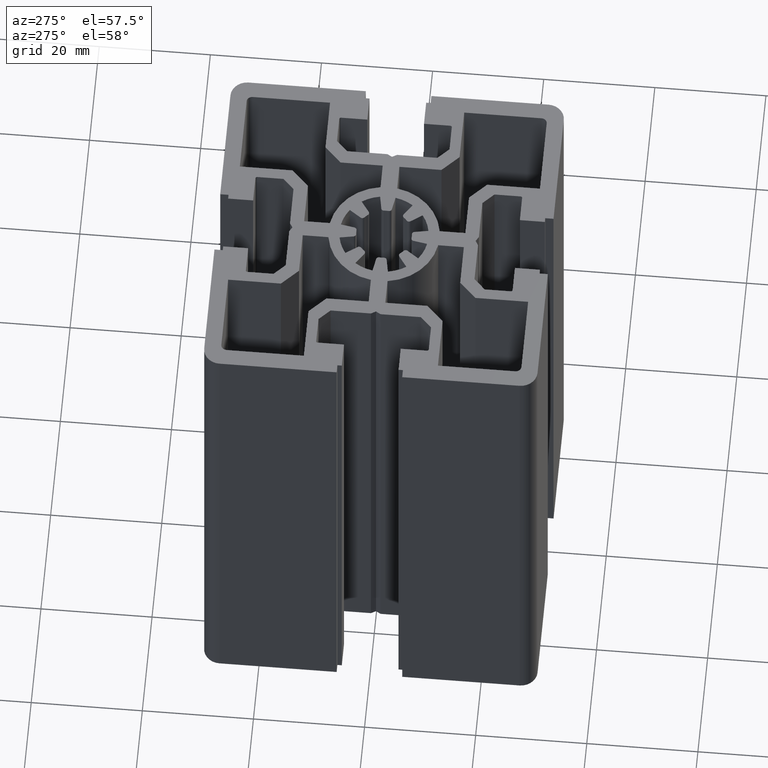
[diagram: clean part render]
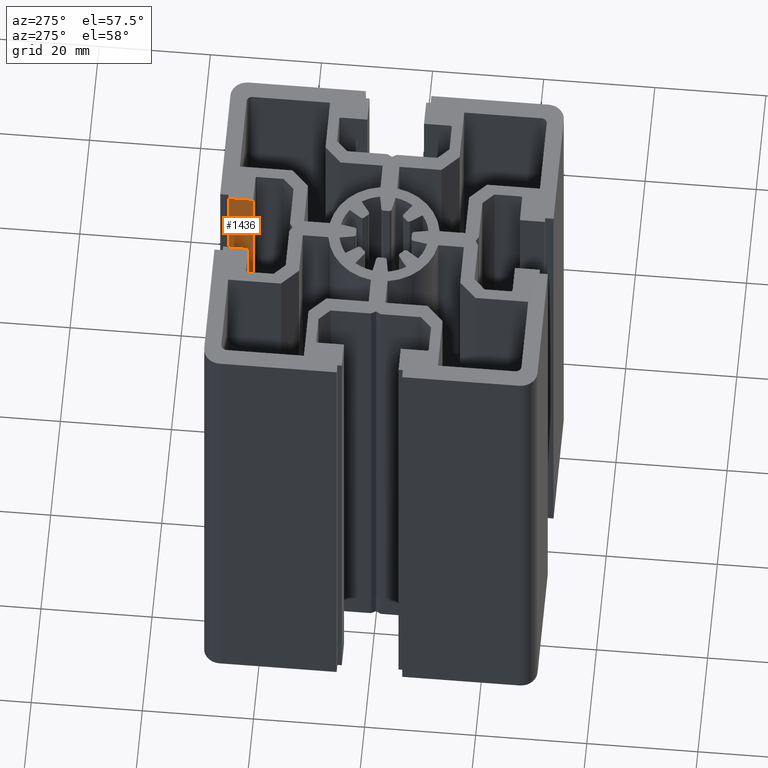
[diagram: same view with one face highlighted and labeled with its STEP entity id]
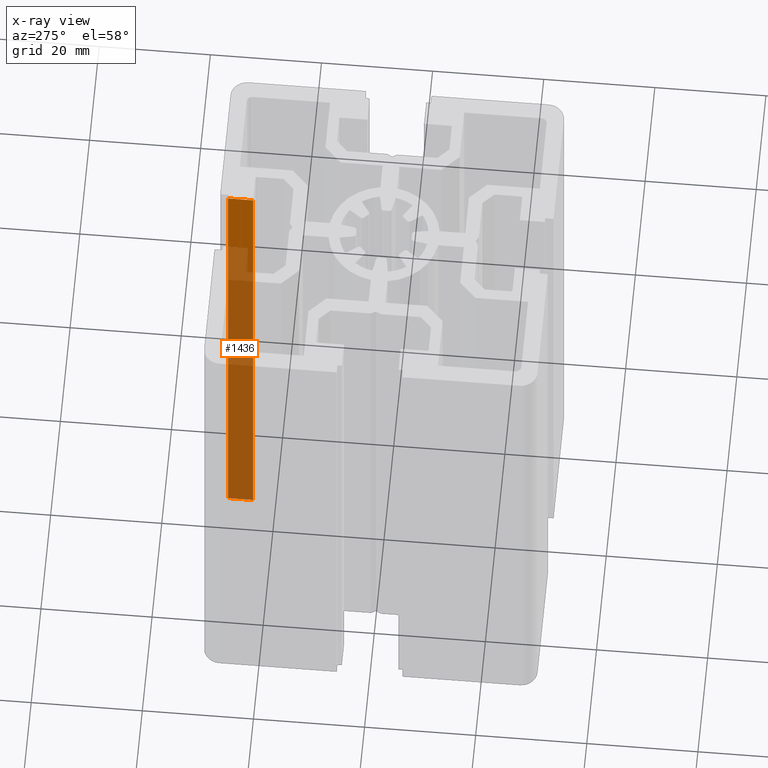
[diagram: x-ray of the same camera — body ghosted, the highlighted face saturated]
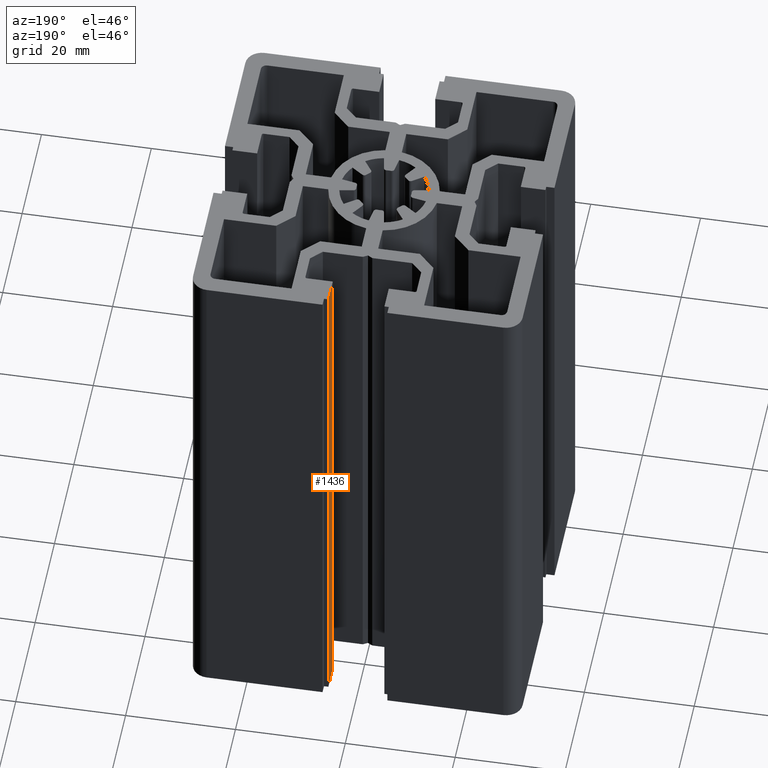
[diagram: same view with one face highlighted and labeled with its STEP entity id]
A machine part, auxiliary view. The second image highlights one B-rep face of the part: STEP entity #1436.
The next image is the same camera in x-ray: the body ghosted, the highlighted face saturated — about 82% of this face is hidden behind the body in this view.
A second angle (auxiliary view) of the same face is appended — the face is thin or edge-on in the first view.
In plain terms, the highlighted planar face has unit normal (1, 0, -0).
Its self-contained STEP definition (entity closure, byte-faithful):
#47 = VERTEX_POINT ( 'NONE', #1887 ) ;
#497 = VERTEX_POINT ( 'NONE', #2605 ) ;
#561 = VERTEX_POINT ( 'NONE', #2724 ) ;
#563 = EDGE_CURVE ( 'NONE', #561, #497, #2719, .T. ) ;
#1039 = EDGE_CURVE ( 'NONE', #1095, #47, #3598, .T. ) ;
#1095 = VERTEX_POINT ( 'NONE', #3636 ) ;
#1427 = EDGE_CURVE ( 'NONE', #561, #1095, #5812, .T. ) ;
#1435 = ORIENTED_EDGE ( 'NONE', *, *, #1437, .F. ) ;
#1436 = ADVANCED_FACE ( 'NONE', ( #5868 ), #5863, .F. ) ;
#1437 = EDGE_CURVE ( 'NONE', #497, #47, #5860, .T. ) ;
#1481 = ORIENTED_EDGE ( 'NONE', *, *, #1039, .T. ) ;
#1483 = ORIENTED_EDGE ( 'NONE', *, *, #563, .F. ) ;
#1486 = ORIENTED_EDGE ( 'NONE', *, *, #1427, .T. ) ;
#1493 = EDGE_LOOP ( 'NONE', ( #1481, #1435, #1483, #1486 ) ) ;
#1887 = CARTESIAN_POINT ( 'NONE',  ( 5.099999999999994300, 24.00000000000000000, 0.0000000000000000000 ) ) ;
#2605 = CARTESIAN_POINT ( 'NONE',  ( 5.099999999999994300, 24.00000000000000000, 100.0000000000000000 ) ) ;
#2716 = DIRECTION ( 'NONE',  ( 0.0000000000000000000, -1.000000000000000000, 0.0000000000000000000 ) ) ;
#2717 = VECTOR ( 'NONE', #2716, 1000.000000000000000 ) ;
#2718 = CARTESIAN_POINT ( 'NONE',  ( 5.099999999999994300, 28.50000000000000000, 100.0000000000000000 ) ) ;
#2719 = LINE ( 'NONE', #2718, #2717 ) ;
#2724 = CARTESIAN_POINT ( 'NONE',  ( 5.099999999999994300, 28.50000000000000000, 100.0000000000000000 ) ) ;
#3595 = DIRECTION ( 'NONE',  ( 0.0000000000000000000, -1.000000000000000000, 0.0000000000000000000 ) ) ;
#3596 = VECTOR ( 'NONE', #3595, 1000.000000000000000 ) ;
#3597 = CARTESIAN_POINT ( 'NONE',  ( 5.099999999999994300, 28.50000000000000000, 0.0000000000000000000 ) ) ;
#3598 = LINE ( 'NONE', #3597, #3596 ) ;
#3636 = CARTESIAN_POINT ( 'NONE',  ( 5.099999999999994300, 28.50000000000000000, 0.0000000000000000000 ) ) ;
#5812 = LINE ( 'NONE', #5866, #5865 ) ;
#5836 = CARTESIAN_POINT ( 'NONE',  ( 5.099999999999994300, 28.50000000000000000, 100.0000000000000000 ) ) ;
#5854 = DIRECTION ( 'NONE',  ( -0.0000000000000000000, -0.0000000000000000000, -1.000000000000000000 ) ) ;
#5855 = VECTOR ( 'NONE', #5854, 1000.000000000000000 ) ;
#5856 = CARTESIAN_POINT ( 'NONE',  ( 5.099999999999994300, 24.00000000000000000, 100.0000000000000000 ) ) ;
#5858 = DIRECTION ( 'NONE',  ( -0.0000000000000000000, 0.0000000000000000000, -1.000000000000000000 ) ) ;
#5860 = LINE ( 'NONE', #5856, #5855 ) ;
#5861 = AXIS2_PLACEMENT_3D ( 'NONE', #5836, #5869, #5858 ) ;
#5863 = PLANE ( 'NONE',  #5861 ) ;
#5864 = DIRECTION ( 'NONE',  ( -0.0000000000000000000, -0.0000000000000000000, -1.000000000000000000 ) ) ;
#5865 = VECTOR ( 'NONE', #5864, 1000.000000000000000 ) ;
#5866 = CARTESIAN_POINT ( 'NONE',  ( 5.099999999999994300, 28.50000000000000000, 100.0000000000000000 ) ) ;
#5868 = FACE_OUTER_BOUND ( 'NONE', #1493, .T. ) ;
#5869 = DIRECTION ( 'NONE',  ( 1.000000000000000000, 0.0000000000000000000, -0.0000000000000000000 ) ) ;